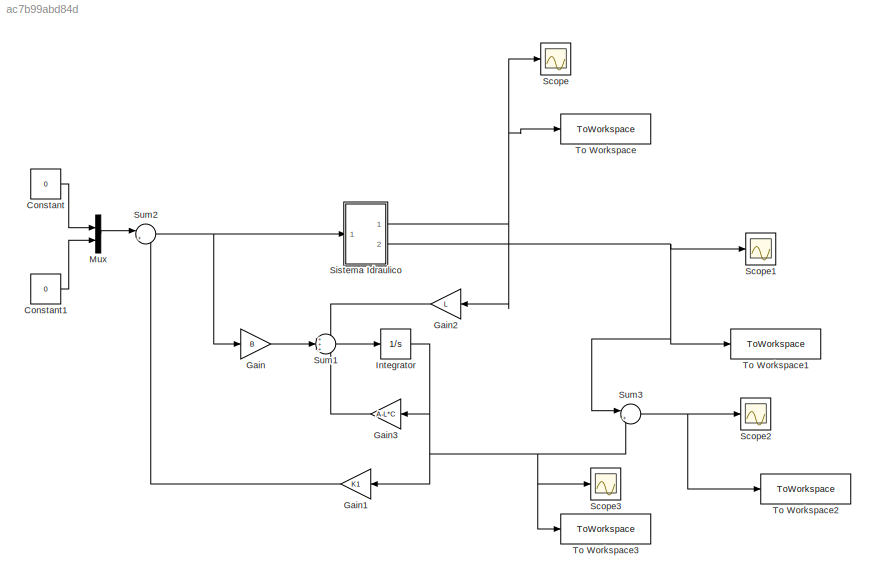
MODEL slx_ac7b99abd84d
KIND model
CONFIG AbsTol = auto
CONFIG EnableMultiTasking = off
CONFIG FixedStep = auto
CONFIG MaxStep = auto
CONFIG MinStep = auto
CONFIG RelTol = 1e-3
CONFIG SampleTimeConstraint = Unconstrained
CONFIG SolverName = VariableStepAuto
CONFIG StartTime = 0.0
CONFIG StopTime = 10.0
BLOCK [Constant] Constant
  Value = 0
BLOCK [Constant] Constant1
  Value = 0
BLOCK [Gain] Gain
  Gain = B
  Multiplication = Matrix(K*u)
BLOCK [Gain] Gain1
  Gain = K1
  Multiplication = Matrix(K*u)
  NameLocation = top
BLOCK [Gain] Gain2
  Gain = L
  Multiplication = Matrix(K*u)
  NameLocation = top
BLOCK [Gain] Gain3
  Gain = A-L*C
  Multiplication = Matrix(K*u)
  NameLocation = top
BLOCK [Integrator] Integrator
  InitialCondition = hi-e_i
  Ports = [1, 1]
BLOCK [Mux] Mux
  DisplayOption = bar
  Inputs = 2
  Ports = [2, 1]
BLOCK [Scope] Scope
  Floating = off
  NumInputPorts = 1
  Ports = [1]
  ScopeSpecificationString = Simulink.scopes.TimeScopeBlockCfg('CurrentConfiguration', extmgr.ConfigurationSet(extmgr.Configuration('Core','General UI',true),extmgr.Configuration('Core','Source UI',true),extmgr.Configuration('Sources','WiredSimulink',true),extmgr.Configuration('Visuals','Time Domain',true,'SerializedDisplays',{struct('MinYLimReal','-12.6102','MaxYLimReal','8.0678','YLabelReal','','MinYLimMag','0.00000','MaxYL...<+1337ch>
BLOCK [Scope] Scope1
  Floating = off
  NumInputPorts = 1
  Ports = [1]
  ScopeSpecificationString = Simulink.scopes.TimeScopeBlockCfg('CurrentConfiguration', extmgr.ConfigurationSet(extmgr.Configuration('Core','General UI',true),extmgr.Configuration('Core','Source UI',true),extmgr.Configuration('Sources','WiredSimulink',true,'DataLoggingVariableName','ScopeData1'),extmgr.Configuration('Visuals','Time Domain',true,'SerializedDisplays',{struct('MinYLimReal','-12.6102','MaxYLimReal','8.0678','YLabe...<+1459ch>
BLOCK [Scope] Scope2
  Floating = off
  NumInputPorts = 1
  Ports = [1]
  ScopeSpecificationString = Simulink.scopes.TimeScopeBlockCfg('CurrentConfiguration', extmgr.ConfigurationSet(extmgr.Configuration('Core','General UI',true),extmgr.Configuration('Core','Source UI',true),extmgr.Configuration('Sources','WiredSimulink',true,'DataLoggingVariableName','ScopeData2'),extmgr.Configuration('Visuals','Time Domain',true,'SerializedDisplays',{struct('MinYLimReal','-41.59553','MaxYLimReal','14.62173','YL...<+1389ch>
BLOCK [Scope] Scope3
  Floating = off
  NumInputPorts = 1
  Ports = [1]
  ScopeSpecificationString = Simulink.scopes.TimeScopeBlockCfg('CurrentConfiguration', extmgr.ConfigurationSet(extmgr.Configuration('Core','General UI',true),extmgr.Configuration('Core','Source UI',true),extmgr.Configuration('Sources','WiredSimulink',true,'DataLoggingVariableName','ScopeData3'),extmgr.Configuration('Visuals','Time Domain',true,'SerializedDisplays',{struct('MinYLimReal','-16.16678','MaxYLimReal','47.02638','YL...<+1440ch>
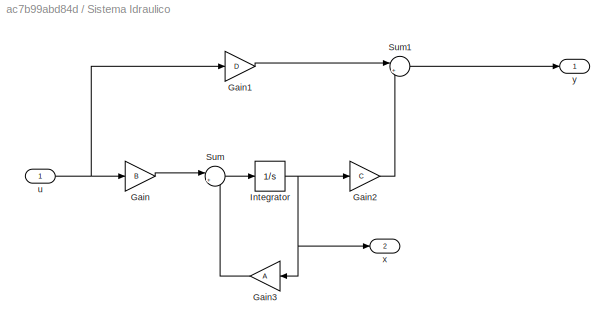
BLOCK [SubSystem] Sistema Idraulico
  Ports = [1, 2]
  RequestExecContextInheritance = off
BLOCK [Gain] Sistema Idraulico/Gain
  Gain = B
  Multiplication = Matrix(K*u)
BLOCK [Gain] Sistema Idraulico/Gain1
  Gain = D
  Multiplication = Matrix(K*u)
BLOCK [Gain] Sistema Idraulico/Gain2
  Gain = C
  Multiplication = Matrix(K*u)
BLOCK [Gain] Sistema Idraulico/Gain3
  Gain = A
  Multiplication = Matrix(K*u)
  NameLocation = top
BLOCK [Integrator] Sistema Idraulico/Integrator
  InitialCondition = hi
  Ports = [1, 1]
BLOCK [Sum] Sistema Idraulico/Sum
  Inputs = |++
  Ports = [2, 1]
BLOCK [Sum] Sistema Idraulico/Sum1
  Inputs = |++
  Ports = [2, 1]
BLOCK [Inport] Sistema Idraulico/u
BLOCK [Outport] Sistema Idraulico/x
  Port = 2
BLOCK [Outport] Sistema Idraulico/y
BLOCK [Sum] Sum1
  Inputs = +++
  Ports = [3, 1]
BLOCK [Sum] Sum2
  Inputs = |+-
  Ports = [2, 1]
BLOCK [Sum] Sum3
  Inputs = |+-
  Ports = [2, 1]
BLOCK [ToWorkspace] To Workspace
  FixptAsFi = on
  MaxDataPoints = inf
  Ports = [1]
  SampleTime = -1
  SaveFormat = Timeseries
  VariableName = y
BLOCK [ToWorkspace] To Workspace1
  FixptAsFi = on
  MaxDataPoints = inf
  Ports = [1]
  SampleTime = -1
  SaveFormat = Timeseries
  VariableName = x
BLOCK [ToWorkspace] To Workspace2
  FixptAsFi = on
  MaxDataPoints = inf
  Ports = [1]
  SampleTime = -1
  SaveFormat = Timeseries
  VariableName = e
BLOCK [ToWorkspace] To Workspace3
  FixptAsFi = on
  MaxDataPoints = inf
  Ports = [1]
  SampleTime = -1
  SaveFormat = Timeseries
  VariableName = x_hat
LINE Constant1:1 -> Mux:2
LINE Constant:1 -> Mux:1
LINE Gain1:1 -> Sum2:2
LINE Gain2:1 -> Sum1:1
LINE Gain3:1 -> Sum1:3
LINE Gain:1 -> Sum1:2
NET Integrator:1 -> Gain1:1, Gain3:1, Scope3:1, Sum3:2, To Workspace3:1
LINE Mux:1 -> Sum2:1
LINE Sistema Idraulico/Gain1:1 -> Sistema Idraulico/Sum1:1
LINE Sistema Idraulico/Gain2:1 -> Sistema Idraulico/Sum1:2
LINE Sistema Idraulico/Gain3:1 -> Sistema Idraulico/Sum:2
LINE Sistema Idraulico/Gain:1 -> Sistema Idraulico/Sum:1
NET Sistema Idraulico/Integrator:1 -> Sistema Idraulico/Gain2:1, Sistema Idraulico/Gain3:1, Sistema Idraulico/x:1
LINE Sistema Idraulico/Sum1:1 -> Sistema Idraulico/y:1
LINE Sistema Idraulico/Sum:1 -> Sistema Idraulico/Integrator:1
NET Sistema Idraulico/u:1 -> Sistema Idraulico/Gain1:1, Sistema Idraulico/Gain:1
NET Sistema Idraulico:1 -> Gain2:1, Scope:1, To Workspace:1
NET Sistema Idraulico:2 -> Scope1:1, Sum3:1, To Workspace1:1
LINE Sum1:1 -> Integrator:1
NET Sum2:1 -> Gain:1, Sistema Idraulico:1
NET Sum3:1 -> Scope2:1, To Workspace2:1
note: NET lines group one-source signal fan-out (src -> all destinations, sorted); 1:1 wires keep LINE
